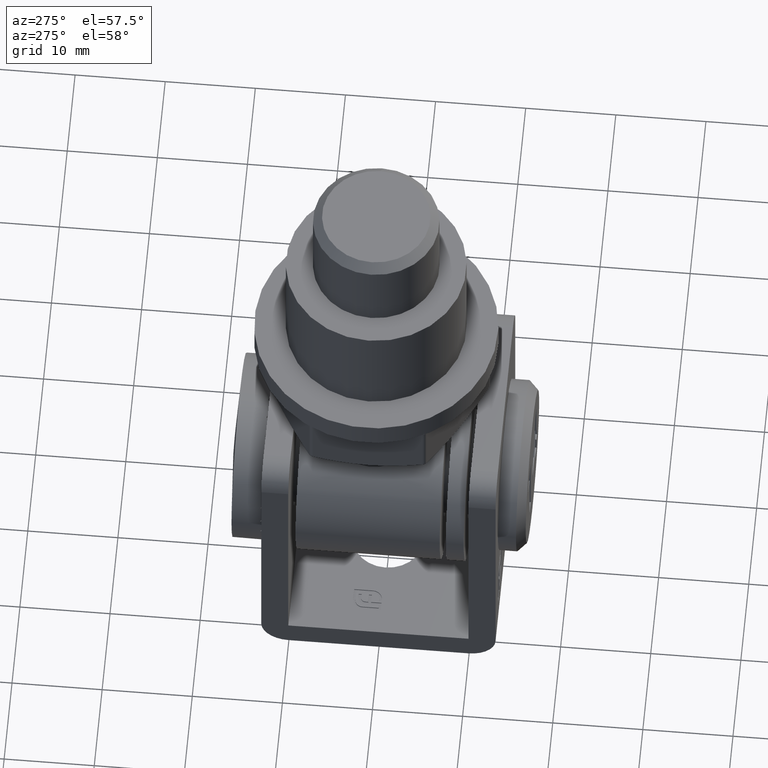
[diagram: clean part render]
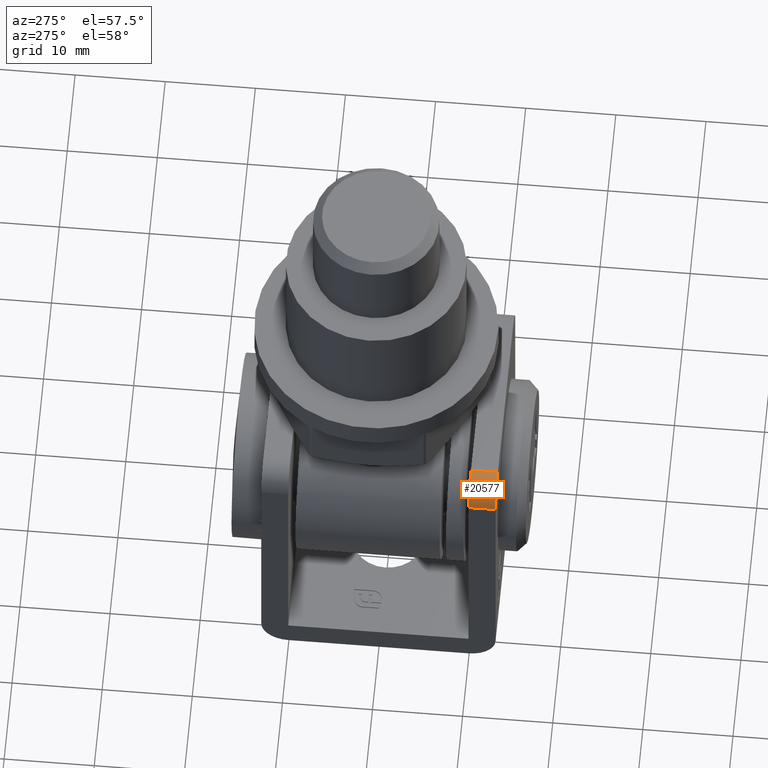
[diagram: same view with one face highlighted and labeled with its STEP entity id]
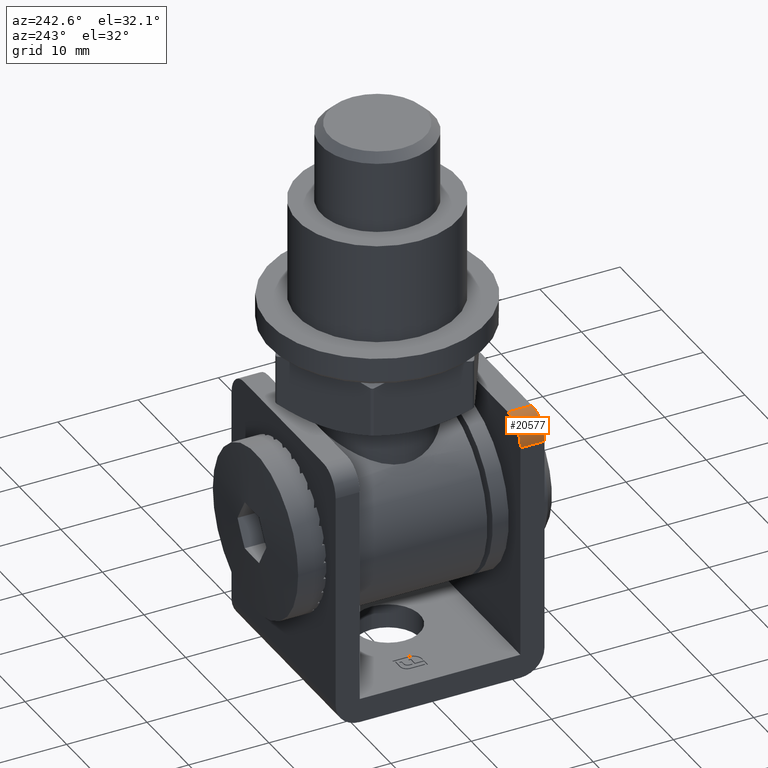
[diagram: same view with one face highlighted and labeled with its STEP entity id]
A machine part, auxiliary view. The second image highlights one B-rep face of the part: STEP entity #20577.
A second angle (auxiliary view) of the same face is appended — the face is thin or edge-on in the first view.
In plain terms, the highlighted cylindrical surface (edge-blend (fillet) strip) has radius 3 mm, axis along (0, -1, -0).
Its self-contained STEP definition (entity closure, byte-faithful):
#643 = CARTESIAN_POINT ( 'NONE',  ( -9.500000000000001776, -9.999999999999996447, 11.99999999999999645 ) ) ;
#1097 = AXIS2_PLACEMENT_3D ( 'NONE', #13878, #10504, #13819 ) ;
#2323 = CARTESIAN_POINT ( 'NONE',  ( -12.50000000000000000, -13.00000000000000178, 11.99999999999999289 ) ) ;
#2987 = DIRECTION ( 'NONE',  ( 0.000000000000000000, 0.000000000000000000, 1.000000000000000000 ) ) ;
#3319 = CARTESIAN_POINT ( 'NONE',  ( -9.500000000000001776, -10.00000000000000000, 14.99999999999999645 ) ) ;
#3536 = ORIENTED_EDGE ( 'NONE', *, *, #8956, .F. ) ;
#5422 = ORIENTED_EDGE ( 'NONE', *, *, #17134, .F. ) ;
#5530 = VERTEX_POINT ( 'NONE', #6785 ) ;
#5566 = VERTEX_POINT ( 'NONE', #3319 ) ;
#5714 = ORIENTED_EDGE ( 'NONE', *, *, #11738, .F. ) ;
#5781 = DIRECTION ( 'NONE',  ( -0.000000000000000000, 1.000000000000000000, 1.156482317317871133E-15 ) ) ;
#6060 = AXIS2_PLACEMENT_3D ( 'NONE', #643, #16943, #7090 ) ;
#6785 = CARTESIAN_POINT ( 'NONE',  ( -9.500000000000001776, -13.00000000000000178, 14.99999999999999289 ) ) ;
#6856 = CIRCLE ( 'NONE', #1097, 2.999999999999999112 ) ;
#7090 = DIRECTION ( 'NONE',  ( 0.000000000000000000, 1.156482317317871725E-15, -1.000000000000000000 ) ) ;
#8956 = EDGE_CURVE ( 'NONE', #13669, #12762, #16602, .T. ) ;
#9348 = CIRCLE ( 'NONE', #16963, 2.999999999999999112 ) ;
#10504 = DIRECTION ( 'NONE',  ( -0.000000000000000000, 1.000000000000000000, -0.000000000000000000 ) ) ;
#10973 = CARTESIAN_POINT ( 'NONE',  ( -9.500000000000001776, -13.00000000000000178, 11.99999999999999289 ) ) ;
#11240 = CYLINDRICAL_SURFACE ( 'NONE', #6060, 2.999999999999999112 ) ;
#11738 = EDGE_CURVE ( 'NONE', #5566, #5530, #19864, .T. ) ;
#12762 = VERTEX_POINT ( 'NONE', #13648 ) ;
#13365 = FACE_OUTER_BOUND ( 'NONE', #14453, .T. ) ;
#13448 = ORIENTED_EDGE ( 'NONE', *, *, #18143, .F. ) ;
#13648 = CARTESIAN_POINT ( 'NONE',  ( -12.50000000000000000, -10.00000000000000000, 11.99999999999999645 ) ) ;
#13669 = VERTEX_POINT ( 'NONE', #2323 ) ;
#13819 = DIRECTION ( 'NONE',  ( 0.000000000000000000, 0.000000000000000000, -1.000000000000000000 ) ) ;
#13878 = CARTESIAN_POINT ( 'NONE',  ( -9.500000000000001776, -10.00000000000000000, 11.99999999999999645 ) ) ;
#14262 = DIRECTION ( 'NONE',  ( 0.000000000000000000, -1.000000000000000000, -1.051347561198065205E-16 ) ) ;
#14453 = EDGE_LOOP ( 'NONE', ( #13448, #3536, #5422, #5714 ) ) ;
#15864 = CARTESIAN_POINT ( 'NONE',  ( -9.500000000000001776, -10.00000000000000000, 14.99999999999999645 ) ) ;
#16107 = VECTOR ( 'NONE', #5781, 1000.000000000000000 ) ;
#16602 = LINE ( 'NONE', #17268, #16107 ) ;
#16943 = DIRECTION ( 'NONE',  ( 0.000000000000000000, -1.000000000000000000, -1.156482317317871133E-15 ) ) ;
#16963 = AXIS2_PLACEMENT_3D ( 'NONE', #10973, #14262, #2987 ) ;
#17134 = EDGE_CURVE ( 'NONE', #5530, #13669, #9348, .T. ) ;
#17268 = CARTESIAN_POINT ( 'NONE',  ( -12.50000000000000000, -1.387778780781446307E-14, 12.00000000000000888 ) ) ;
#17481 = DIRECTION ( 'NONE',  ( 0.000000000000000000, -1.000000000000000000, -1.156482317317871133E-15 ) ) ;
#18143 = EDGE_CURVE ( 'NONE', #12762, #5566, #6856, .T. ) ;
#19864 = LINE ( 'NONE', #15864, #21160 ) ;
#20577 = ADVANCED_FACE ( 'NONE', ( #13365 ), #11240, .T. ) ;
#21160 = VECTOR ( 'NONE', #17481, 1000.000000000000000 ) ;